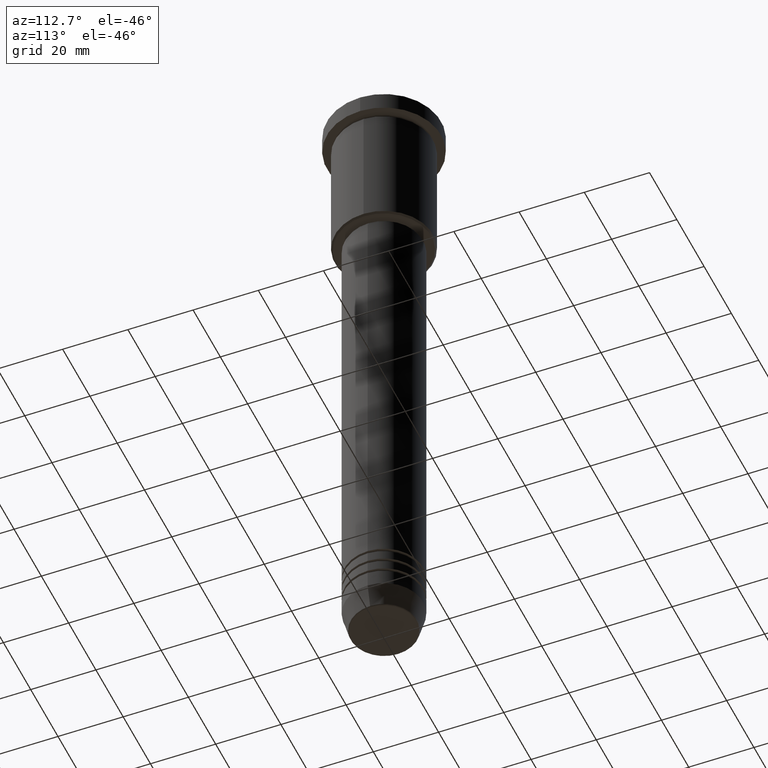
[diagram: clean part render]
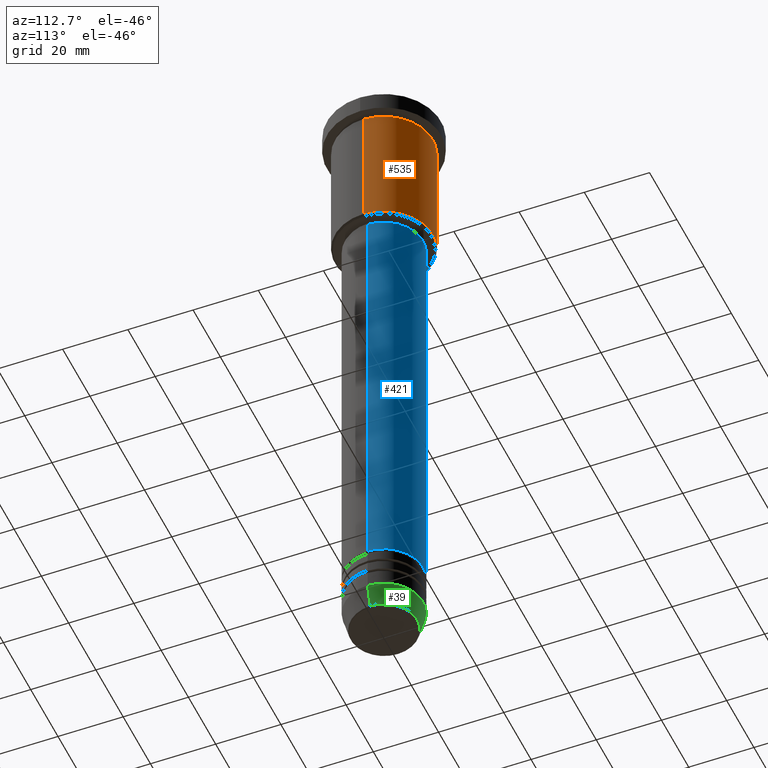
[diagram: same view with three faces highlighted in distinct colors, each labeled with its STEP entity id]
A machine part, auxiliary view with three faces highlighted in distinct colors.
Their STEP definitions:

[orange] entity #535 — the highlighted cylindrical surface (partial cylindrical patch) has radius 15 mm, axis along (-0, -0, 1).
#32 = EDGE_CURVE ( 'NONE', #1057, #962, #517, .T. ) ;
#38 = ORIENTED_EDGE ( 'NONE', *, *, #656, .F. ) ;
#74 = CARTESIAN_POINT ( 'NONE',  ( -15.00000000000000000, 1.836970198721029589E-15, 0.000000000000000000 ) ) ;
#88 = CARTESIAN_POINT ( 'NONE',  ( 15.00000000000000000, 0.000000000000000000, -6.999999999999995559 ) ) ;
#90 = DIRECTION ( 'NONE',  ( -0.000000000000000000, -0.000000000000000000, 1.000000000000000000 ) ) ;
#140 = CARTESIAN_POINT ( 'NONE',  ( 0.000000000000000000, 0.000000000000000000, -45.50000000000000000 ) ) ;
#143 = DIRECTION ( 'NONE',  ( -0.000000000000000000, -0.000000000000000000, 1.000000000000000000 ) ) ;
#304 = DIRECTION ( 'NONE',  ( 1.000000000000000000, 0.000000000000000000, 0.000000000000000000 ) ) ;
#311 = AXIS2_PLACEMENT_3D ( 'NONE', #140, #396, #674 ) ;
#317 = AXIS2_PLACEMENT_3D ( 'NONE', #731, #926, #1105 ) ;
#323 = CARTESIAN_POINT ( 'NONE',  ( 0.000000000000000000, 0.000000000000000000, 0.000000000000000000 ) ) ;
#328 = CYLINDRICAL_SURFACE ( 'NONE', #827, 15.00000000000000000 ) ;
#329 = ORIENTED_EDGE ( 'NONE', *, *, #916, .F. ) ;
#396 = DIRECTION ( 'NONE',  ( -0.000000000000000000, -0.000000000000000000, 1.000000000000000000 ) ) ;
#517 = LINE ( 'NONE', #74, #806 ) ;
#535 = ADVANCED_FACE ( 'NONE', ( #854 ), #328, .T. ) ;
#542 = VECTOR ( 'NONE', #1036, 1000.000000000000000 ) ;
#656 = EDGE_CURVE ( 'NONE', #734, #750, #1125, .T. ) ;
#670 = CARTESIAN_POINT ( 'NONE',  ( 15.00000000000000000, 0.000000000000000000, 0.000000000000000000 ) ) ;
#674 = DIRECTION ( 'NONE',  ( -1.000000000000000000, 0.000000000000000000, 0.000000000000000000 ) ) ;
#679 = CIRCLE ( 'NONE', #317, 15.00000000000000000 ) ;
#700 = EDGE_LOOP ( 'NONE', ( #886, #919, #329, #38 ) ) ;
#731 = CARTESIAN_POINT ( 'NONE',  ( 0.000000000000000000, 0.000000000000000000, -6.999999999999995559 ) ) ;
#734 = VERTEX_POINT ( 'NONE', #1152 ) ;
#750 = VERTEX_POINT ( 'NONE', #88 ) ;
#806 = VECTOR ( 'NONE', #90, 1000.000000000000000 ) ;
#819 = CARTESIAN_POINT ( 'NONE',  ( -15.00000000000000000, 1.836970198721029589E-15, -6.999999999999995559 ) ) ;
#827 = AXIS2_PLACEMENT_3D ( 'NONE', #323, #143, #304 ) ;
#854 = FACE_OUTER_BOUND ( 'NONE', #700, .T. ) ;
#871 = CARTESIAN_POINT ( 'NONE',  ( -15.00000000000000000, 1.836970198721029589E-15, -45.50000000000000000 ) ) ;
#886 = ORIENTED_EDGE ( 'NONE', *, *, #1002, .T. ) ;
#916 = EDGE_CURVE ( 'NONE', #750, #962, #679, .T. ) ;
#919 = ORIENTED_EDGE ( 'NONE', *, *, #32, .T. ) ;
#926 = DIRECTION ( 'NONE',  ( -0.000000000000000000, -0.000000000000000000, 1.000000000000000000 ) ) ;
#962 = VERTEX_POINT ( 'NONE', #819 ) ;
#1002 = EDGE_CURVE ( 'NONE', #734, #1057, #1118, .T. ) ;
#1036 = DIRECTION ( 'NONE',  ( -0.000000000000000000, -0.000000000000000000, 1.000000000000000000 ) ) ;
#1057 = VERTEX_POINT ( 'NONE', #871 ) ;
#1105 = DIRECTION ( 'NONE',  ( 1.000000000000000000, 0.000000000000000000, 0.000000000000000000 ) ) ;
#1118 = CIRCLE ( 'NONE', #311, 15.00000000000000000 ) ;
#1125 = LINE ( 'NONE', #670, #542 ) ;
#1152 = CARTESIAN_POINT ( 'NONE',  ( 15.00000000000000000, 0.000000000000000000, -45.50000000000000000 ) ) ;

[blue] entity #421 — the highlighted cylindrical surface (partial cylindrical patch) has radius 12 mm, axis along (-0, -0, 1).
#26 = VERTEX_POINT ( 'NONE', #895 ) ;
#57 = ORIENTED_EDGE ( 'NONE', *, *, #784, .F. ) ;
#67 = VECTOR ( 'NONE', #699, 1000.000000000000000 ) ;
#106 = CIRCLE ( 'NONE', #234, 12.00000000000000000 ) ;
#124 = DIRECTION ( 'NONE',  ( -0.000000000000000000, -0.000000000000000000, 1.000000000000000000 ) ) ;
#176 = VECTOR ( 'NONE', #1059, 1000.000000000000000 ) ;
#184 = VERTEX_POINT ( 'NONE', #188 ) ;
#188 = CARTESIAN_POINT ( 'NONE',  ( 12.00000000000000000, 0.000000000000000000, -179.9999999999999147 ) ) ;
#234 = AXIS2_PLACEMENT_3D ( 'NONE', #298, #124, #496 ) ;
#298 = CARTESIAN_POINT ( 'NONE',  ( 0.000000000000000000, 0.000000000000000000, -179.9999999999999147 ) ) ;
#306 = CARTESIAN_POINT ( 'NONE',  ( -12.00000000000000000, 1.469576158976823947E-15, 0.000000000000000000 ) ) ;
#312 = EDGE_CURVE ( 'NONE', #26, #922, #319, .T. ) ;
#319 = LINE ( 'NONE', #306, #176 ) ;
#338 = DIRECTION ( 'NONE',  ( -0.000000000000000000, -0.000000000000000000, 1.000000000000000000 ) ) ;
#421 = ADVANCED_FACE ( 'NONE', ( #529 ), #785, .T. ) ;
#496 = DIRECTION ( 'NONE',  ( 1.000000000000000000, 0.000000000000000000, 0.000000000000000000 ) ) ;
#529 = FACE_OUTER_BOUND ( 'NONE', #933, .T. ) ;
#567 = ORIENTED_EDGE ( 'NONE', *, *, #991, .T. ) ;
#600 = CARTESIAN_POINT ( 'NONE',  ( 12.00000000000000000, 0.000000000000000000, -47.00000000000003553 ) ) ;
#610 = DIRECTION ( 'NONE',  ( -0.000000000000000000, -0.000000000000000000, 1.000000000000000000 ) ) ;
#618 = DIRECTION ( 'NONE',  ( 1.000000000000000000, 0.000000000000000000, 0.000000000000000000 ) ) ;
#624 = CARTESIAN_POINT ( 'NONE',  ( 0.000000000000000000, 0.000000000000000000, -47.00000000000003553 ) ) ;
#692 = EDGE_CURVE ( 'NONE', #184, #1027, #1144, .T. ) ;
#699 = DIRECTION ( 'NONE',  ( -0.000000000000000000, -0.000000000000000000, 1.000000000000000000 ) ) ;
#710 = CARTESIAN_POINT ( 'NONE',  ( 12.00000000000000000, 0.000000000000000000, 0.000000000000000000 ) ) ;
#738 = ORIENTED_EDGE ( 'NONE', *, *, #692, .F. ) ;
#784 = EDGE_CURVE ( 'NONE', #1027, #922, #811, .T. ) ;
#785 = CYLINDRICAL_SURFACE ( 'NONE', #1046, 12.00000000000000000 ) ;
#811 = CIRCLE ( 'NONE', #829, 12.00000000000000000 ) ;
#829 = AXIS2_PLACEMENT_3D ( 'NONE', #624, #610, #618 ) ;
#895 = CARTESIAN_POINT ( 'NONE',  ( -12.00000000000000000, 1.469576158976823947E-15, -179.9999999999999147 ) ) ;
#922 = VERTEX_POINT ( 'NONE', #1096 ) ;
#933 = EDGE_LOOP ( 'NONE', ( #567, #996, #57, #738 ) ) ;
#991 = EDGE_CURVE ( 'NONE', #184, #26, #106, .T. ) ;
#996 = ORIENTED_EDGE ( 'NONE', *, *, #312, .T. ) ;
#1027 = VERTEX_POINT ( 'NONE', #600 ) ;
#1046 = AXIS2_PLACEMENT_3D ( 'NONE', #1155, #338, #1151 ) ;
#1059 = DIRECTION ( 'NONE',  ( -0.000000000000000000, -0.000000000000000000, 1.000000000000000000 ) ) ;
#1096 = CARTESIAN_POINT ( 'NONE',  ( -12.00000000000000000, 1.469576158976823947E-15, -47.00000000000003553 ) ) ;
#1144 = LINE ( 'NONE', #710, #67 ) ;
#1151 = DIRECTION ( 'NONE',  ( 1.000000000000000000, 0.000000000000000000, 0.000000000000000000 ) ) ;
#1155 = CARTESIAN_POINT ( 'NONE',  ( 0.000000000000000000, 0.000000000000000000, 0.000000000000000000 ) ) ;

[green] entity #39 — the highlighted conical surface has half-angle 15 deg.
#2 = ORIENTED_EDGE ( 'NONE', *, *, #950, .T. ) ;
#5 = CIRCLE ( 'NONE', #694, 12.00000000000000000 ) ;
#12 = DIRECTION ( 'NONE',  ( -0.2588190451025213501, 3.169619151431772337E-17, 0.9659258262890680902 ) ) ;
#39 = ADVANCED_FACE ( 'NONE', ( #246 ), #1154, .T. ) ;
#77 = ORIENTED_EDGE ( 'NONE', *, *, #479, .F. ) ;
#82 = CARTESIAN_POINT ( 'NONE',  ( 10.22365507213719127, 0.000000000000000000, -200.6294095225512706 ) ) ;
#210 = VERTEX_POINT ( 'NONE', #566 ) ;
#246 = FACE_OUTER_BOUND ( 'NONE', #1122, .T. ) ;
#248 = DIRECTION ( 'NONE',  ( 1.000000000000000000, 0.000000000000000000, 0.000000000000000000 ) ) ;
#251 = CARTESIAN_POINT ( 'NONE',  ( 12.00000000000000000, 0.000000000000000000, -194.0000000000000000 ) ) ;
#253 = DIRECTION ( 'NONE',  ( -0.000000000000000000, -0.000000000000000000, 1.000000000000000000 ) ) ;
#288 = LINE ( 'NONE', #655, #1022 ) ;
#299 = VERTEX_POINT ( 'NONE', #850 ) ;
#332 = AXIS2_PLACEMENT_3D ( 'NONE', #434, #253, #248 ) ;
#339 = DIRECTION ( 'NONE',  ( 1.000000000000000000, 0.000000000000000000, 0.000000000000000000 ) ) ;
#342 = ORIENTED_EDGE ( 'NONE', *, *, #1169, .T. ) ;
#343 = DIRECTION ( 'NONE',  ( 0.2588190451025213501, 0.000000000000000000, 0.9659258262890680902 ) ) ;
#371 = CIRCLE ( 'NONE', #332, 10.22365507213719127 ) ;
#393 = CARTESIAN_POINT ( 'NONE',  ( 0.000000000000000000, 0.000000000000000000, -194.0000000000000000 ) ) ;
#419 = LINE ( 'NONE', #251, #1157 ) ;
#434 = CARTESIAN_POINT ( 'NONE',  ( 0.000000000000000000, 0.000000000000000000, -200.6294095225512706 ) ) ;
#452 = DIRECTION ( 'NONE',  ( -0.000000000000000000, -0.000000000000000000, 1.000000000000000000 ) ) ;
#479 = EDGE_CURVE ( 'NONE', #744, #210, #419, .T. ) ;
#483 = AXIS2_PLACEMENT_3D ( 'NONE', #1159, #452, #339 ) ;
#492 = DIRECTION ( 'NONE',  ( 1.000000000000000000, 0.000000000000000000, 0.000000000000000000 ) ) ;
#503 = DIRECTION ( 'NONE',  ( -0.000000000000000000, -0.000000000000000000, 1.000000000000000000 ) ) ;
#566 = CARTESIAN_POINT ( 'NONE',  ( 12.00000000000000000, 0.000000000000000000, -194.0000000000000000 ) ) ;
#655 = CARTESIAN_POINT ( 'NONE',  ( -12.00000000000000000, 1.469576158976823947E-15, -194.0000000000000000 ) ) ;
#694 = AXIS2_PLACEMENT_3D ( 'NONE', #393, #503, #492 ) ;
#743 = CARTESIAN_POINT ( 'NONE',  ( -12.00000000000000000, 1.469576158976823947E-15, -194.0000000000000000 ) ) ;
#744 = VERTEX_POINT ( 'NONE', #82 ) ;
#846 = VERTEX_POINT ( 'NONE', #743 ) ;
#850 = CARTESIAN_POINT ( 'NONE',  ( -10.22365507213719127, 1.360806402472382744E-15, -200.6294095225512706 ) ) ;
#950 = EDGE_CURVE ( 'NONE', #299, #846, #288, .T. ) ;
#1011 = EDGE_CURVE ( 'NONE', #210, #846, #5, .T. ) ;
#1022 = VECTOR ( 'NONE', #12, 1000.000000000000000 ) ;
#1074 = ORIENTED_EDGE ( 'NONE', *, *, #1011, .F. ) ;
#1122 = EDGE_LOOP ( 'NONE', ( #342, #2, #1074, #77 ) ) ;
#1154 = CONICAL_SURFACE ( 'NONE', #483, 12.00000000000000000, 0.2617993877991500740 ) ;
#1157 = VECTOR ( 'NONE', #343, 1000.000000000000000 ) ;
#1159 = CARTESIAN_POINT ( 'NONE',  ( 0.000000000000000000, 0.000000000000000000, -194.0000000000000000 ) ) ;
#1169 = EDGE_CURVE ( 'NONE', #744, #299, #371, .T. ) ;